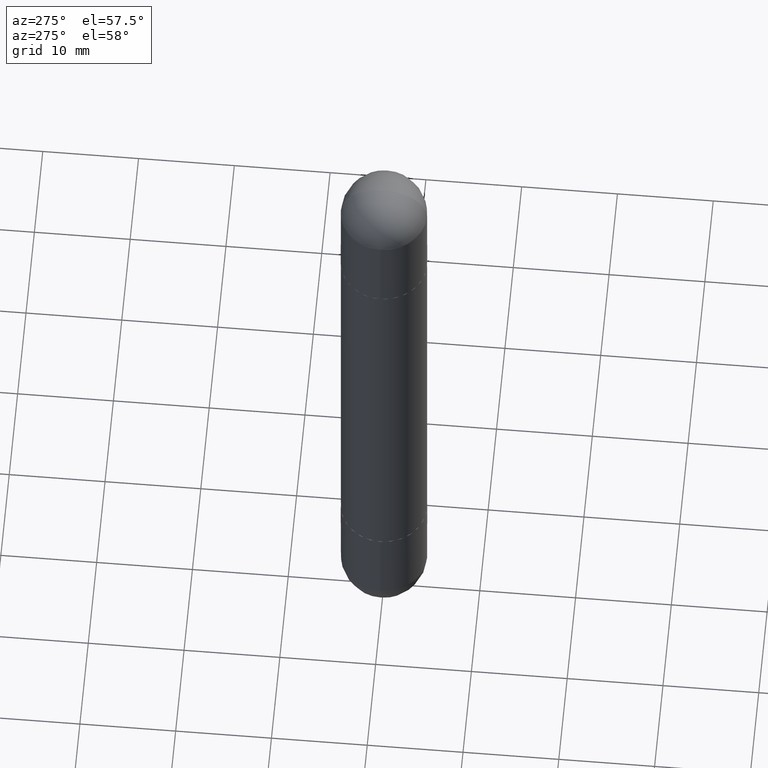
[diagram: clean part render]
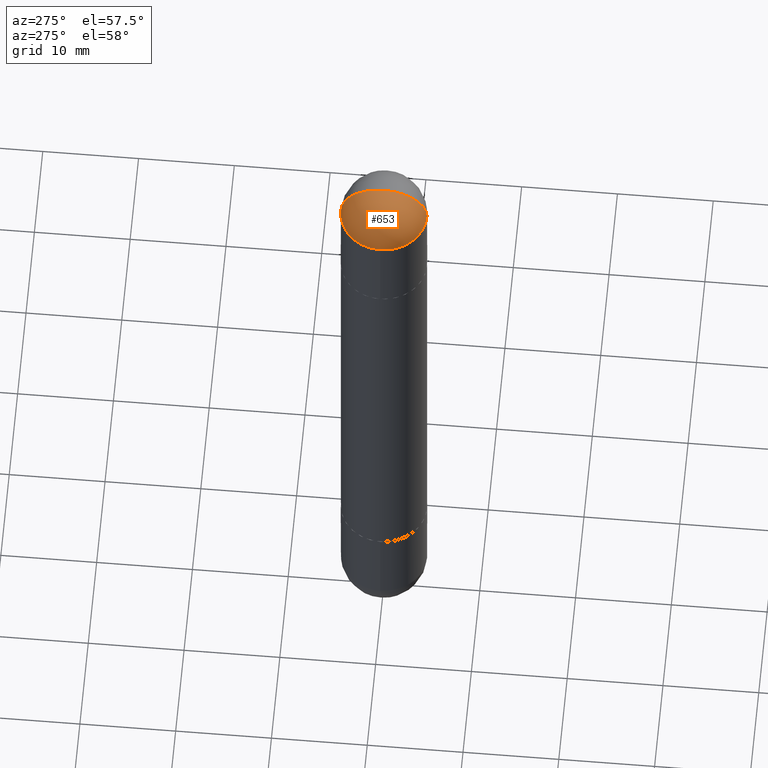
[diagram: same view with one face highlighted and labeled with its STEP entity id]
A machine part, auxiliary view. The second image highlights one B-rep face of the part: STEP entity #653.
In plain terms, the highlighted spherical surface has radius 4.4996 mm.
Its self-contained STEP definition (entity closure, byte-faithful):
#11 = DIRECTION ( 'NONE',  ( -1.000000000000000000, 6.982962677686265922E-15, 4.883557194083112340E-29 ) ) ;
#13 = FACE_OUTER_BOUND ( 'NONE', #292, .T. ) ;
#14 = CARTESIAN_POINT ( 'NONE',  ( 6.787765491887772680E-29, -9.691130178159974964E-15, -0.1771500000000000574 ) ) ;
#28 = AXIS2_PLACEMENT_3D ( 'NONE', #70, #260, #274 ) ;
#41 = ORIENTED_EDGE ( 'NONE', *, *, #647, .T. ) ;
#45 = CARTESIAN_POINT ( 'NONE',  ( -1.215337220305161228E-15, -0.1771500000000100772, -0.1771500000000006680 ) ) ;
#70 = CARTESIAN_POINT ( 'NONE',  ( 6.456645713973887554E-29, -1.016531254630002526E-14, -0.1771500000000000574 ) ) ;
#78 = CARTESIAN_POINT ( 'NONE',  ( 6.456645713973887554E-29, -1.016531254630002526E-14, -0.1771500000000000574 ) ) ;
#88 = CARTESIAN_POINT ( 'NONE',  ( 6.456645713973887554E-29, -1.016531254630002526E-14, -0.1771500000000000574 ) ) ;
#137 = ORIENTED_EDGE ( 'NONE', *, *, #294, .F. ) ;
#162 = DIRECTION ( 'NONE',  ( 2.445468806185136597E-29, -3.491481338843145583E-15, 1.000000000000000000 ) ) ;
#166 = ORIENTED_EDGE ( 'NONE', *, *, #229, .T. ) ;
#187 = EDGE_CURVE ( 'NONE', #504, #797, #698, .T. ) ;
#229 = EDGE_CURVE ( 'NONE', #797, #489, #269, .T. ) ;
#249 = CARTESIAN_POINT ( 'NONE',  ( 1.237031838352189250E-15, 0.1771499999999902042, -0.1771499999999994468 ) ) ;
#260 = DIRECTION ( 'NONE',  ( 1.000000000000000000, -6.982962677686265922E-15, -4.883557194083112340E-29 ) ) ;
#269 = CIRCLE ( 'NONE', #414, 0.1771500000000000019 ) ;
#274 = DIRECTION ( 'NONE',  ( 6.982962677686265922E-15, 1.000000000000000000, 3.469747663417772269E-15 ) ) ;
#291 = CIRCLE ( 'NONE', #357, 0.1771500000000002517 ) ;
#292 = EDGE_LOOP ( 'NONE', ( #137, #41, #554, #166 ) ) ;
#294 = EDGE_CURVE ( 'NONE', #526, #489, #291, .T. ) ;
#348 = CARTESIAN_POINT ( 'NONE',  ( -0.1771500000000000019, -7.822798660457609805E-15, -0.1771500000000000574 ) ) ;
#357 = AXIS2_PLACEMENT_3D ( 'NONE', #88, #579, #766 ) ;
#366 = DIRECTION ( 'NONE',  ( 1.000000000000000000, -6.982962677686272233E-15, 0.000000000000000000 ) ) ;
#380 = CARTESIAN_POINT ( 'NONE',  ( 6.897435148395990892E-29, -1.077298115645264157E-14, 2.048885995248197414E-16 ) ) ;
#406 = DIRECTION ( 'NONE',  ( 2.445468806185136597E-29, -3.491481338843145583E-15, 1.000000000000000000 ) ) ;
#414 = AXIS2_PLACEMENT_3D ( 'NONE', #14, #406, #658 ) ;
#452 = AXIS2_PLACEMENT_3D ( 'NONE', #606, #162, #366 ) ;
#489 = VERTEX_POINT ( 'NONE', #45 ) ;
#504 = VERTEX_POINT ( 'NONE', #249 ) ;
#526 = VERTEX_POINT ( 'NONE', #380 ) ;
#554 = ORIENTED_EDGE ( 'NONE', *, *, #187, .T. ) ;
#579 = DIRECTION ( 'NONE',  ( 1.000000000000000000, -6.860497997771530774E-15, -4.840798879624142912E-29 ) ) ;
#585 = DIRECTION ( 'NONE',  ( -6.982962677686265922E-15, -1.000000000000000000, 0.000000000000000000 ) ) ;
#606 = CARTESIAN_POINT ( 'NONE',  ( 6.787765491887772680E-29, -9.691130178159974964E-15, -0.1771500000000000574 ) ) ;
#626 = AXIS2_PLACEMENT_3D ( 'NONE', #78, #11, #585 ) ;
#647 = EDGE_CURVE ( 'NONE', #526, #504, #762, .T. ) ;
#653 = ADVANCED_FACE ( 'NONE', ( #13 ), #656, .T. ) ;
#656 = SPHERICAL_SURFACE ( 'NONE', #28, 0.1771500000000002517 ) ;
#658 = DIRECTION ( 'NONE',  ( 1.000000000000000000, -6.982962677686272233E-15, 0.000000000000000000 ) ) ;
#698 = CIRCLE ( 'NONE', #452, 0.1771500000000000019 ) ;
#762 = CIRCLE ( 'NONE', #626, 0.1771500000000002517 ) ;
#766 = DIRECTION ( 'NONE',  ( 6.860497997771531562E-15, 1.000000000000000000, 0.000000000000000000 ) ) ;
#797 = VERTEX_POINT ( 'NONE', #348 ) ;